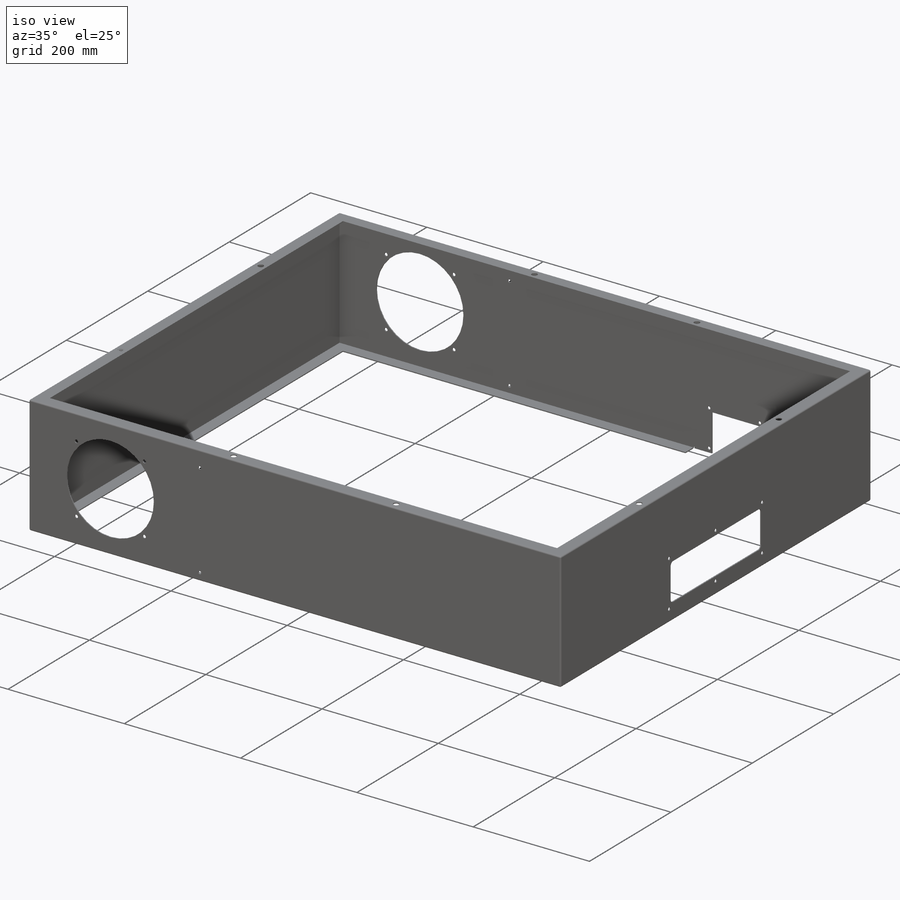
[diagram: iso view]
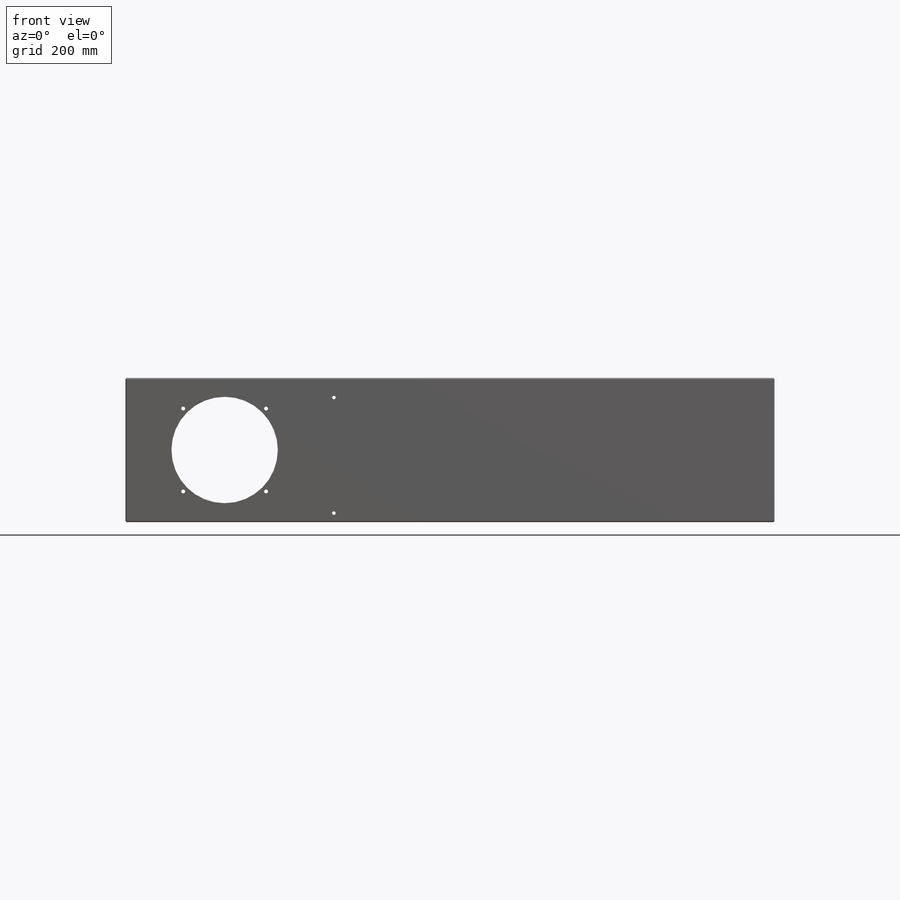
[diagram: front view]
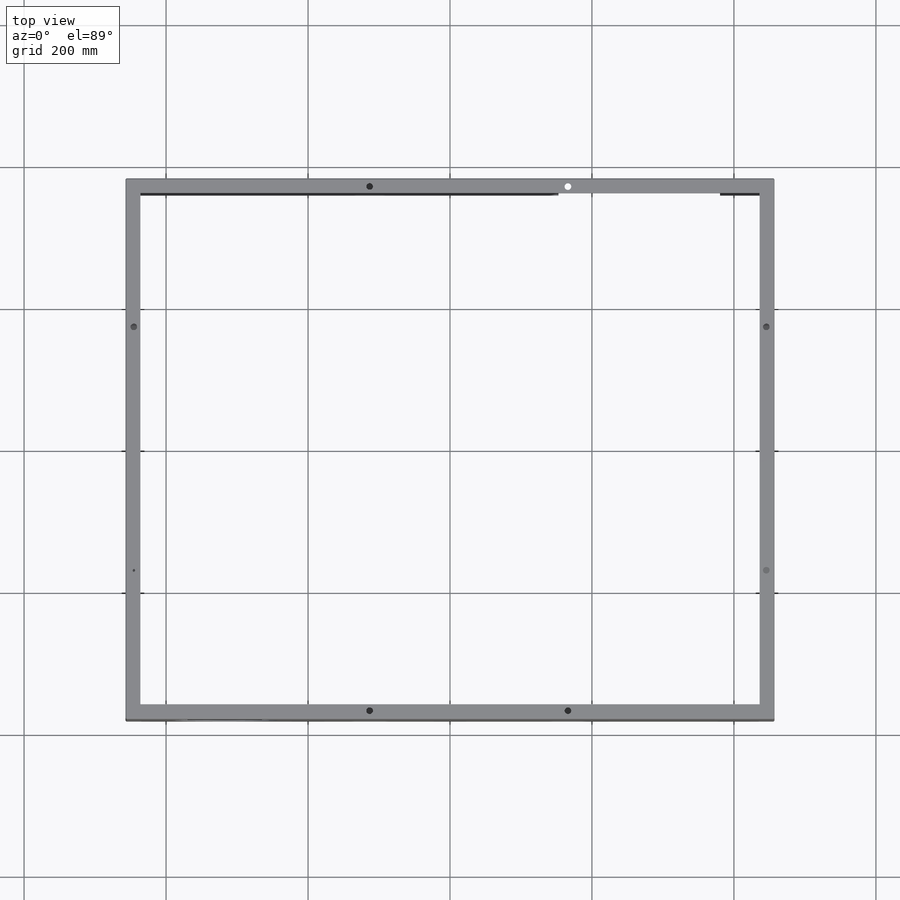
[diagram: top view]
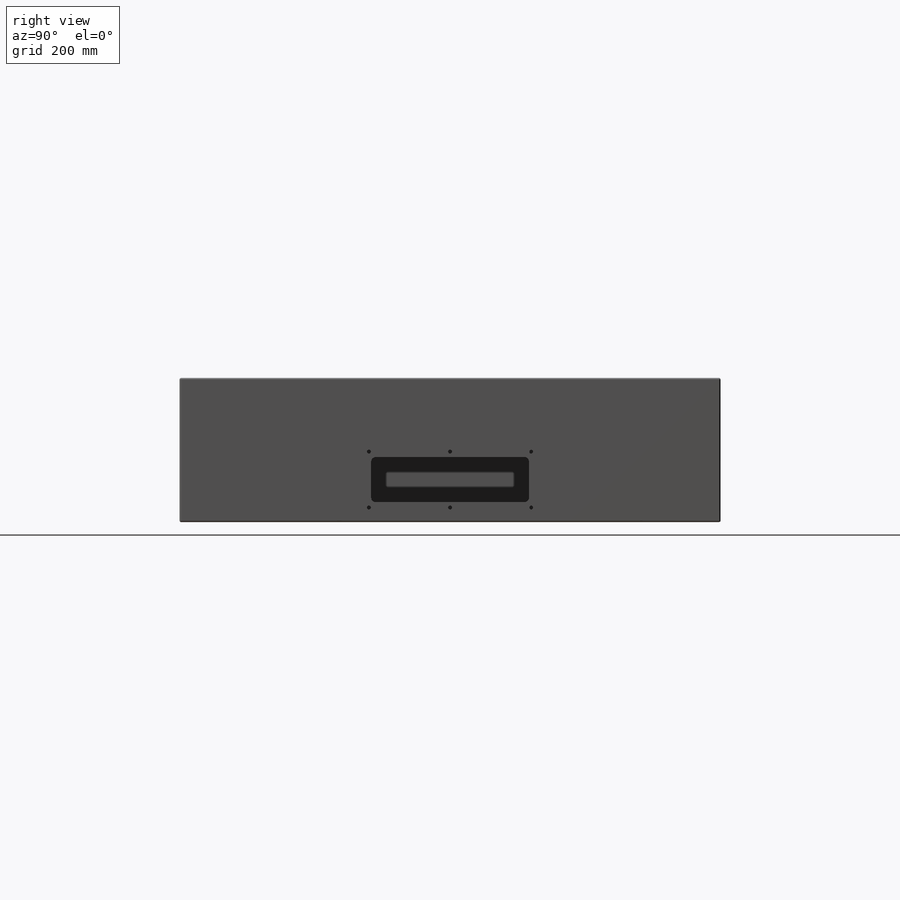
[diagram: right view]
SOLIDWORKS PART (.sldprt)
format: sldprt  version: not decoded by parser v0  size: 2,089,984 bytes
history: native  units: mm
features: sketch x16, cut_extrude x5, hole x5, move_body x4, material x1, extrude x1, shell x1, fillet x1, mirror x1 + 8 further entries (+30 scaffold rows collapsed; 20 parser-record rows omitted)
feature tree (93):
  scaffold x30  (default folders/planes/origin — collapsed)
  material  "5052-H32"
  "Origin"  ID=392984584
  sketch  "Sketch1"  dims[D1=914.4mm D2=762.0mm]
  extrude  "Boss-Extrude1"  Depth=203.2mm
  sketch  "Sketch2"  dims[c1.D1=14.224mm c1.D2=14.224mm c1.D3=~20.115774mm c2.D2=14.224mm c2.D3=~20.115774mm c2.D1=14.224mm c3.D3=~21.360245mm c3.D1=21.082mm c4.D3=304.8mm c4.D4=~305.131713mm c4.D5=319.024mm c4.D6=319.024mm c5.D3=289.052mm]
  cut_extrude  "Cut-Extrude1"  [1 undecoded]
  shell  "Shell1"  Thickness=1.6002mm
  sketch  "Sketch7"  dims[c1.D1=203.2mm c1.D2=88.9mm c1.D3=227.584mm c2.D2=165.1mm]
  cut_extrude  "Cut-Extrude3"  [1 undecoded]
  sketch  "Sketch8"  dims[c1.D1=64.77mm c1.D2=163.576mm c1.D3=~63.275095mm c2.D1=0.762mm c2.D3=64.77mm c2.D4=3.048mm c2.D5=1.6002mm]
  cut_extrude  "Cut-Extrude4"  [1 undecoded]
  fillet  "Fillet1"  Radius=2.286mm
  hole  "#8 Clearance Hole2"  Diameter=4.9149mm Depth=1.6002mm
  sketch  "Sketch10"  dims[c1.D1=7.493mm c1.D2=62.484mm c1.D3=174.244mm c1.D4=~144.730245mm c2.D1=7.493mm c2.D4=~24.72413mm]
  sketch  "Sketch9"  dims[hole-wizard template sketch: 60 standard entries collapsed; hole parameters kept: c18.Thru Hole Depth=1.6002mm]
  sketch  "Sketch11"  dims[D4=6.35mm D1=222.25mm D2=63.5mm D3=27.94mm]
  cut_extrude  "Cut-Extrude5"  [1 undecoded]
  hole  "#3 (0.213) Diameter Hole1"  Diameter=5.4102mm Depth=1.6002mm
  sketch  "Sketch13"  dims[D1=228.6mm D2=78.74mm]
  sketch  "Sketch12"  dims[hole-wizard template sketch: 59 standard entries collapsed; hole parameters kept: c18.Thru Hole Dia.=5.4102mm c18.Thru Hole Depth=1.6002mm]
  hole  "U (0.368) Diameter Hole1"  Diameter=9.3472mm Depth=1.5992mm
  sketch  "Sketch16"  dims[c1.D1=9.398mm c1.D2=~124.036667mm c1.D3=~183.799399mm c2.D2=~124.036667mm c2.D3=~126.587342mm c2.D1=9.398mm c3.D2=~126.587342mm c3.D3=16.002mm c3.D4=18.288mm c4.D3=16.002mm c4.D1=9.398mm c4.D2=~13.290779mm c5.D3=16.002mm c5.D4=18.288mm c6.D3=16.6878mm c6.D4=16.002mm c6.D1=9.398mm c6.D2=11.684mm c7.D3=~126.587342mm c7.D4=~135.961196mm c8.D3=~126.587342mm c8.D1=9.398mm c9.D3=133.35mm c9.D4=~208.110667mm c9.D5=~133.680757mm c9.D6=123.952mm c9.D7=123.952mm c10.D3=133.35mm c10.D1=738.632mm c10.D2=269.24mm c11.D3=266.7mm c11.D2=334.518mm c11.D5=266.7mm c11.D1=445.516mm c12.D2=342.9mm c12.D3=~448.959514mm c12.D1=9.398mm c13.D3=269.24mm c13.D4=176.276mm c13.D5=~409.227976mm c13.D6=9.398mm c13.D7=9.398mm c14.D4=621.792mm c14.D3=558.8mm]
  sketch  "Sketch15"  dims[hole-wizard template sketch: 46 standard entries collapsed; hole parameters kept: c15.Hole Dia.=9.3472mm c15.Hole Depth=1.5992mm c15.D3=~14.816244mm c15.Drill Angle=118.0deg]
  "AC-832-2 (Penn Engineering)"
  parser-record x20  (decoder bookkeeping rows leaked as tree rows — omitted from the tree; the rows remain in map.json)
  move_body  "Body-Move/Copy2"
  "Sketch-Pattern1"
  sketch  "Sketch4"  dims[c1.D1=149.86mm c1.D2=139.7mm c1.D3=101.6mm c1.D4=~170.895194mm c2.D3=101.6mm c2.D2=317.5mm]
  cut_extrude  "Cut-Extrude2"  [1 undecoded]
  hole  "#3 (0.213) Diameter Hole2"  Diameter=5.4102mm Depth=1.6002mm
  sketch  "Sketch6"  dims[D1=165.1mm]
  sketch  "Sketch5"  dims[hole-wizard template sketch: 59 standard entries collapsed; hole parameters kept: c18.Thru Hole Dia.=5.4102mm c18.Thru Hole Depth=1.6002mm]
  "CLS-832-2 (Penn Engineering)"
  move_body  "Body-Move/Copy4"
  "CLS-832-2 (Penn Engineering)1"
  move_body  "Body-Move/Copy6"
  "Sketch-Pattern4"
  hole  "#8 Clearance Hole3"  Diameter=4.9149mm Depth=1.6002mm
  sketch  "Sketch19"  dims[D1=12.7mm D2=162.814mm D3=163.576mm]
  sketch  "Sketch18"  dims[hole-wizard template sketch: 60 standard entries collapsed; hole parameters kept: c18.Thru Hole Depth=1.6002mm]
  mirror  "Mirror1"
  "CLS-832-2 (Penn Engineering)2"
  move_body  "Body-Move/Copy8"
  "Sketch-Pattern5"
decode coverage: 24 of 34 modeling features carry decoded parameters; 8 rows unclassified (native names shown)
note: ~ marks probable driven/reference dimensions
note: 5 parameter values undecoded
summary: no parameter record found for 5 features; Diameter pulled from absorbed wizard sketch
note: suppression state not decoded; provenance and decode notes live in map.json
